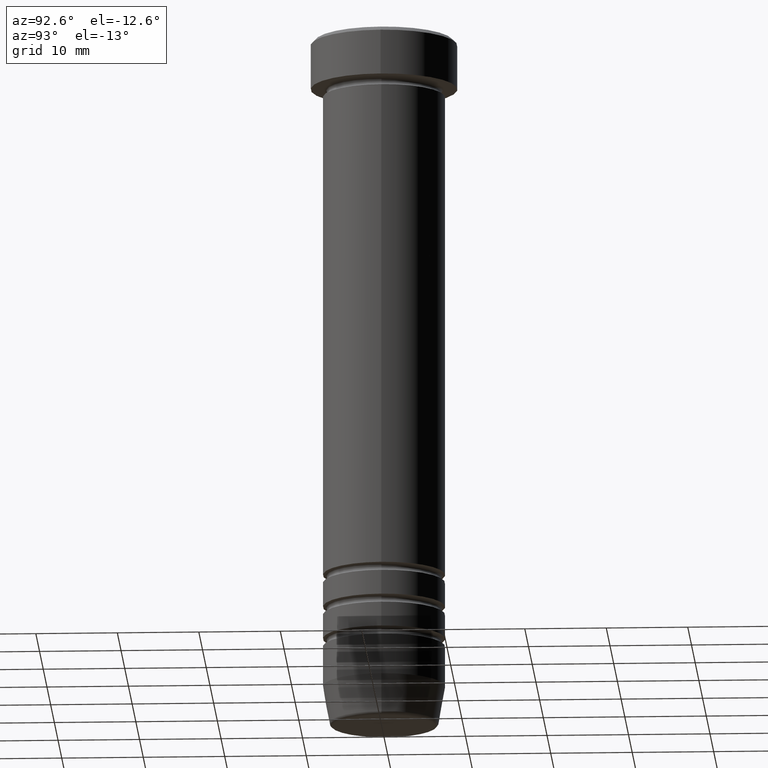
[diagram: clean part render]
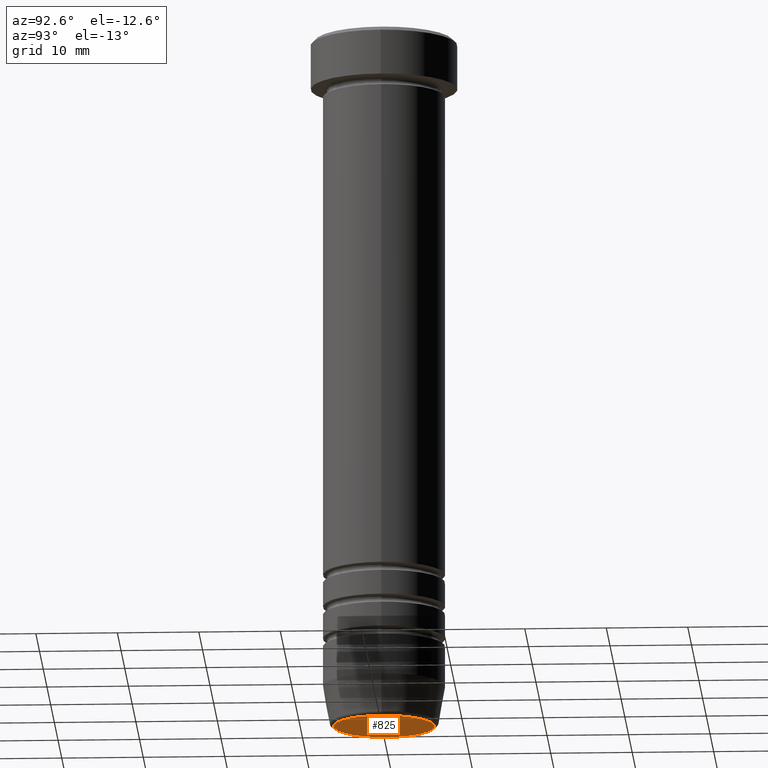
[diagram: same view with one face highlighted and labeled with its STEP entity id]
A machine part, auxiliary view. The second image highlights one B-rep face of the part: STEP entity #825.
In plain terms, the highlighted planar face has unit normal (0, -0, 1).
Its self-contained STEP definition (entity closure, byte-faithful):
#58 = VERTEX_POINT ( 'NONE', #862 ) ;
#157 = ORIENTED_EDGE ( 'NONE', *, *, #949, .T. ) ;
#214 = DIRECTION ( 'NONE',  ( 1.000000000000000000, 0.000000000000000000, 0.000000000000000000 ) ) ;
#266 = EDGE_CURVE ( 'NONE', #58, #1085, #694, .T. ) ;
#381 = DIRECTION ( 'NONE',  ( 0.000000000000000000, -0.000000000000000000, 1.000000000000000000 ) ) ;
#390 = FACE_OUTER_BOUND ( 'NONE', #710, .T. ) ;
#443 = CARTESIAN_POINT ( 'NONE',  ( 6.198815280869029110, 0.000000000000000000, -86.00000000000000000 ) ) ;
#465 = AXIS2_PLACEMENT_3D ( 'NONE', #864, #586, #783 ) ;
#492 = CARTESIAN_POINT ( 'NONE',  ( 0.000000000000000000, 3.245314017740484976E-15, -86.00000000000000000 ) ) ;
#540 = CARTESIAN_POINT ( 'NONE',  ( 0.000000000000000000, 0.000000000000000000, -86.00000000000000000 ) ) ;
#570 = PLANE ( 'NONE',  #715 ) ;
#586 = DIRECTION ( 'NONE',  ( 0.000000000000000000, 0.000000000000000000, -1.000000000000000000 ) ) ;
#639 = DIRECTION ( 'NONE',  ( 0.000000000000000000, 0.000000000000000000, -1.000000000000000000 ) ) ;
#694 = CIRCLE ( 'NONE', #711, 6.198815280869029110 ) ;
#710 = EDGE_LOOP ( 'NONE', ( #157, #1040 ) ) ;
#711 = AXIS2_PLACEMENT_3D ( 'NONE', #540, #639, #1000 ) ;
#715 = AXIS2_PLACEMENT_3D ( 'NONE', #492, #381, #214 ) ;
#783 = DIRECTION ( 'NONE',  ( 1.000000000000000000, 0.000000000000000000, 0.000000000000000000 ) ) ;
#825 = ADVANCED_FACE ( 'NONE', ( #390 ), #570, .F. ) ;
#850 = CIRCLE ( 'NONE', #465, 6.198815280869029110 ) ;
#862 = CARTESIAN_POINT ( 'NONE',  ( -6.198815280869029110, 7.892869707847433528E-16, -86.00000000000000000 ) ) ;
#864 = CARTESIAN_POINT ( 'NONE',  ( 0.000000000000000000, 0.000000000000000000, -86.00000000000000000 ) ) ;
#949 = EDGE_CURVE ( 'NONE', #1085, #58, #850, .T. ) ;
#1000 = DIRECTION ( 'NONE',  ( 1.000000000000000000, 0.000000000000000000, 0.000000000000000000 ) ) ;
#1040 = ORIENTED_EDGE ( 'NONE', *, *, #266, .T. ) ;
#1085 = VERTEX_POINT ( 'NONE', #443 ) ;